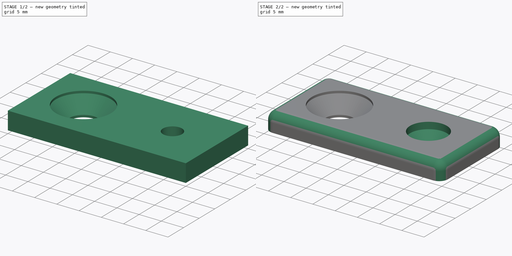
[diagram: build sequence overview — one tinted view per stage of 2, left to right]
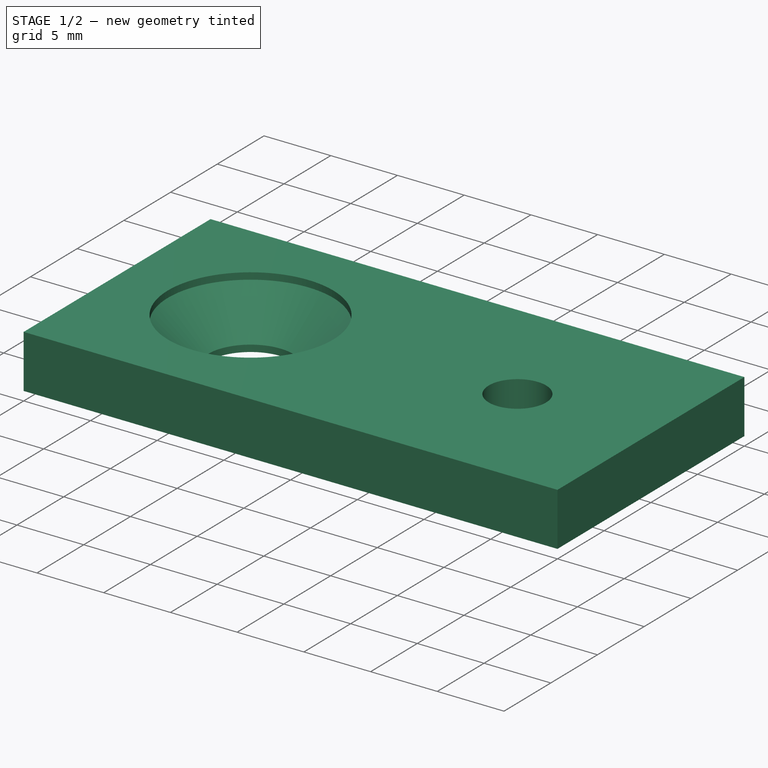
[diagram: stage 1 of 2 — iso view after this stage's code; geometry added in this stage tinted green]
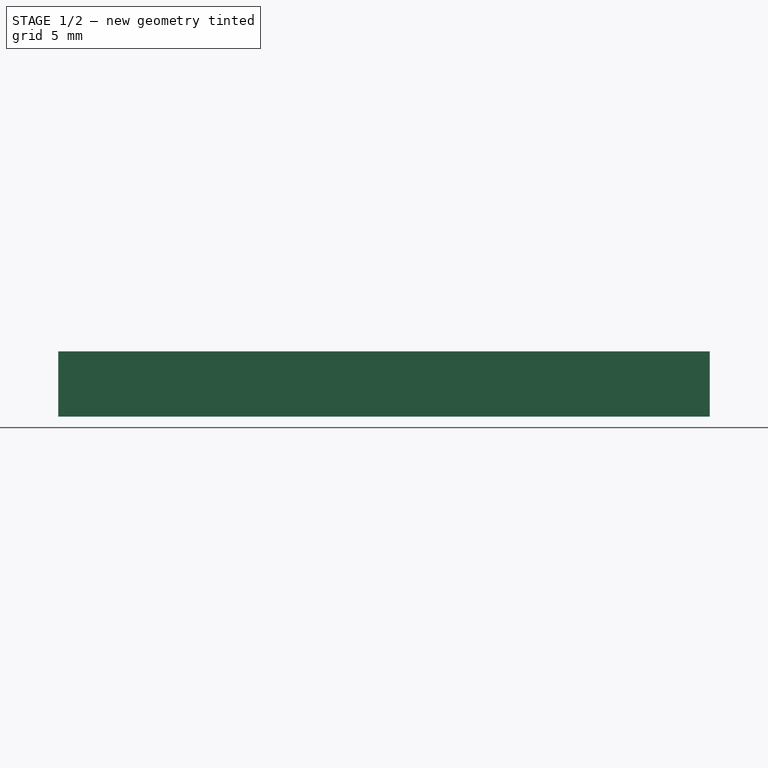
[diagram: stage 1 of 2 — front view after this stage's code; geometry added in this stage tinted green]
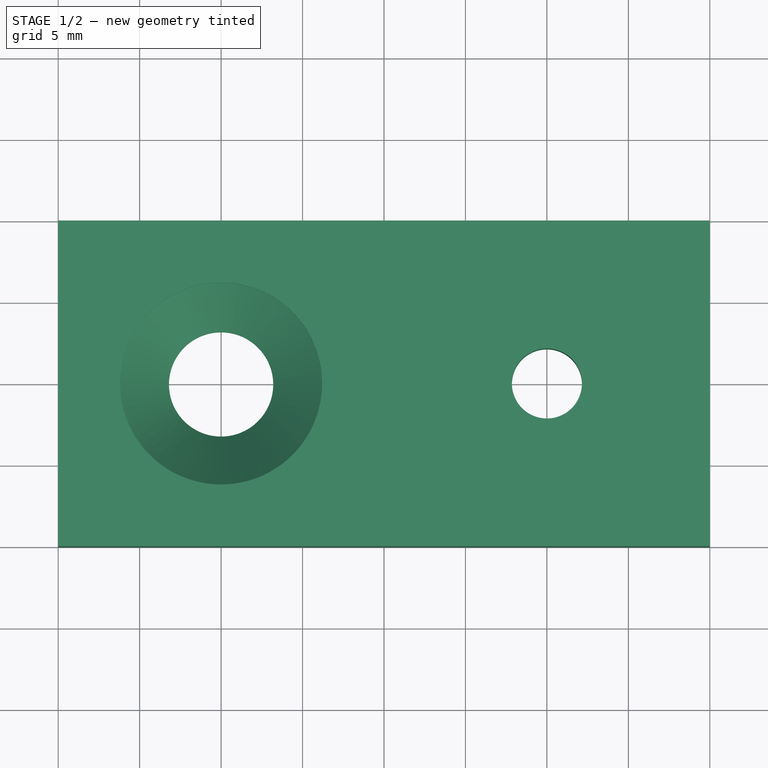
[diagram: stage 1 of 2 — top view after this stage's code; geometry added in this stage tinted green]
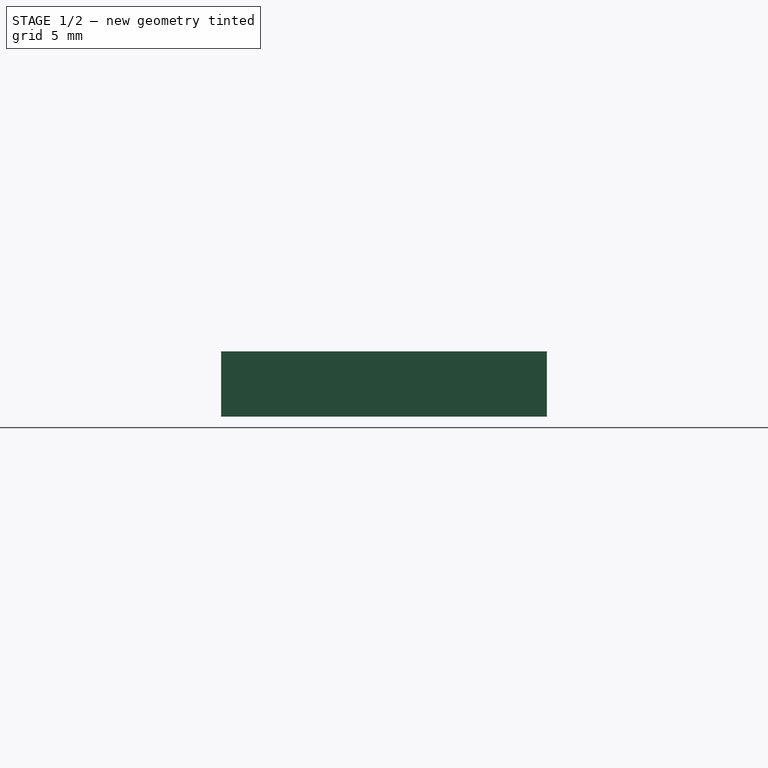
[diagram: stage 1 of 2 — right view after this stage's code; geometry added in this stage tinted green]
FCSTD DOCUMENT  (FreeCAD 0.18R13971 (Git))
Label: 07_503_z-foot
License: All rights reserved
LicenseURL: http://en.wikipedia.org/wiki/All_rights_reserved
objects: Sketcher::SketchObject×7, PartDesign::SubtractiveLoft×2, Spreadsheet::Sheet×1, PartDesign::Pad×1, PartDesign::Fillet×1, PartDesign::Body×1
note: 15 computed .brp shape members not serialized (recipe doc carries the construction recipe); baked Part::Feature solids carry a one-line shape summary decoded from their .brp

FEATURE [Spreadsheet::Sheet] Spreadsheet  label="sheet1"
  cells = A1=dx; B1(dx)=40; A2=dy; B2(dy)=20; A3=dz; B3(dz)=4; A4=M6Clearance; B4(M6Clearance)=6.4000000000000004; A5=M6CounterSinkDepth; B5(M6CounterSinkDepth)=3.5; A6=M4Clearance; B6(M4Clearance)=4.2999999999999998; A7=M4CounterSinkDepth; B7(M4CounterSinkDepth)=3.5; A8=M6HoleX; B8(M6HoleX)=10; A9=M6HoleY; B9(M6HoleY)=10; A10=M4HoleX; B10(M4HoleX)=30; A11=M4HoleY; B11(M4HoleY)=10
FEATURE [Sketcher::SketchObject] Sketch
  MapMode = 5
  Support = -> [XY_Plane]
  expr: Constraints[15] = sheet1.M6Clearance / 2
  expr: Constraints[16] = sheet1.M4Clearance / 2
  expr: Constraints[10] = sheet1.dx
  expr: Constraints[9] = sheet1.dy
  sketch-geometry (6):
    g0: LineSegment StartX=0 StartY=20 StartZ=0 EndX=40 EndY=20 EndZ=0
    g1: LineSegment StartX=40 StartY=20 StartZ=0 EndX=40 EndY=0 EndZ=0
    g2: LineSegment StartX=40 StartY=0 StartZ=0 EndX=0 EndY=0 EndZ=0
    g3: LineSegment StartX=0 StartY=0 StartZ=0 EndX=0 EndY=20 EndZ=0
    g4: Circle CenterX=10 CenterY=10 CenterZ=0 NormalX=0 NormalY=0 NormalZ=1 AngleXU=0 Radius=3.2
    g5: Circle CenterX=30 CenterY=10 CenterZ=0 NormalX=0 NormalY=0 NormalZ=1 AngleXU=0 Radius=2.15
  constraints (17):
    c: Coincident(g0,g1)
    c: Coincident(g1,g2)
    c: Coincident(g2,g3)
    c: Coincident(g3,g0)
    c: Horizontal(g0)
    c: Horizontal(g2)
    c: Vertical(g1)
    c: Vertical(g3)
    c: Coincident(g2,g-1)
    c: Distance(g3) = 20
    c: Distance(g2) = 40
    c: DistanceX(g-2,g4) = 10
    c: DistanceY(g-1,g4) = 10
    c: DistanceX(g-2,g5) = 30
    c: DistanceY(g-1,g5) = 10
    c: Radius(g4) = 3.2
    c: Radius(g5) = 2.15
FEATURE [PartDesign::Pad] Pad
  Length = 4
  Length2 = 100
  Profile = -> Sketch
  Type = 0
  expr: Length = sheet1.dz
FEATURE [Sketcher::SketchObject] Sketch001
  AttachmentOffset = pos=(0,0,0.5) rot=(0,0,1;0rad)
  MapMode = 5
  Placement = pos=(0,0,0.5) rot=(0,0,1;0rad)
  Support = -> [XY_Plane]
  expr: AttachmentOffset.Base.z = sheet1.dz - sheet1.M6CounterSinkDepth
  expr: Constraints[15] = sheet1.M6Clearance / 2
  expr: Constraints[16] = sheet1.M4Clearance / 2
  expr: Constraints[10] = sheet1.dx
  expr: Constraints[9] = sheet1.dy
  sketch-geometry (6):
    g0: LineSegment [constr] StartX=0 StartY=20 StartZ=0 EndX=40 EndY=20 EndZ=0
    g1: LineSegment [constr] StartX=40 StartY=20 StartZ=0 EndX=40 EndY=0 EndZ=0
    g2: LineSegment [constr] StartX=40 StartY=0 StartZ=0 EndX=0 EndY=0 EndZ=0
    g3: LineSegment [constr] StartX=0 StartY=0 StartZ=0 EndX=0 EndY=20 EndZ=0
    g4: Circle CenterX=10 CenterY=10 CenterZ=0 NormalX=0 NormalY=0 NormalZ=1 AngleXU=0 Radius=3.2
    g5: Circle [constr] CenterX=30 CenterY=10 CenterZ=0 NormalX=0 NormalY=0 NormalZ=1 AngleXU=0 Radius=2.15
  constraints (17):
    c: Coincident(g0,g1)
    c: Coincident(g1,g2)
    c: Coincident(g2,g3)
    c: Coincident(g3,g0)
    c: Horizontal(g0)
    c: Horizontal(g2)
    c: Vertical(g1)
    c: Vertical(g3)
    c: Coincident(g2,g-1)
    c: Distance(g3) = 20
    c: Distance(g2) = 40
    c: DistanceX(g-2,g4) = 10
    c: DistanceY(g-1,g4) = 10
    c: DistanceX(g-2,g5) = 30
    c: DistanceY(g-1,g5) = 10
    c: Radius(g4) = 3.2
    c: Radius(g5) = 2.15
FEATURE [Sketcher::SketchObject] Sketch002
  AttachmentOffset = pos=(0,0,3.5) rot=(0,0,1;0rad)
  MapMode = 5
  Placement = pos=(0,0,3.5) rot=(0,0,1;0rad)
  Support = -> [XY_Plane]
  expr: AttachmentOffset.Base.z = sheet1.dz - sheet1.M6CounterSinkDepth + 3
  expr: Constraints[15] = sheet1.M6Clearance / 2 + 3
  expr: Constraints[16] = sheet1.M4Clearance / 2
  expr: Constraints[10] = sheet1.dx
  expr: Constraints[9] = sheet1.dy
  sketch-geometry (6):
    g0: LineSegment [constr] StartX=0 StartY=20 StartZ=0 EndX=40 EndY=20 EndZ=0
    g1: LineSegment [constr] StartX=40 StartY=20 StartZ=0 EndX=40 EndY=0 EndZ=0
    g2: LineSegment [constr] StartX=40 StartY=0 StartZ=0 EndX=0 EndY=0 EndZ=0
    g3: LineSegment [constr] StartX=0 StartY=0 StartZ=0 EndX=0 EndY=20 EndZ=0
    g4: Circle CenterX=10 CenterY=10 CenterZ=0 NormalX=0 NormalY=0 NormalZ=1 AngleXU=0 Radius=6.2
    g5: Circle [constr] CenterX=30 CenterY=10 CenterZ=0 NormalX=0 NormalY=0 NormalZ=1 AngleXU=0 Radius=2.15
  constraints (17):
    c: Coincident(g0,g1)
    c: Coincident(g1,g2)
    c: Coincident(g2,g3)
    c: Coincident(g3,g0)
    c: Horizontal(g0)
    c: Horizontal(g2)
    c: Vertical(g1)
    c: Vertical(g3)
    c: Coincident(g2,g-1)
    c: Distance(g3) = 20
    c: Distance(g2) = 40
    c: DistanceX(g-2,g4) = 10
    c: DistanceY(g-1,g4) = 10
    c: DistanceX(g-2,g5) = 30
    c: DistanceY(g-1,g5) = 10
    c: Radius(g4) = 6.2
    c: Radius(g5) = 2.15
FEATURE [Sketcher::SketchObject] Sketch003
  AttachmentOffset = pos=(0,0,4) rot=(0,0,1;0rad)
  MapMode = 5
  Placement = pos=(0,0,4) rot=(0,0,1;0rad)
  Support = -> [XY_Plane]
  expr: AttachmentOffset.Base.z = sheet1.dz
  expr: Constraints[15] = sheet1.M6Clearance / 2 + 3
  expr: Constraints[16] = sheet1.M4Clearance / 2
  expr: Constraints[10] = sheet1.dx
  expr: Constraints[9] = sheet1.dy
  sketch-geometry (6):
    g0: LineSegment [constr] StartX=0 StartY=20 StartZ=0 EndX=40 EndY=20 EndZ=0
    g1: LineSegment [constr] StartX=40 StartY=20 StartZ=0 EndX=40 EndY=0 EndZ=0
    g2: LineSegment [constr] StartX=40 StartY=0 StartZ=0 EndX=0 EndY=0 EndZ=0
    g3: LineSegment [constr] StartX=0 StartY=0 StartZ=0 EndX=0 EndY=20 EndZ=0
    g4: Circle CenterX=10 CenterY=10 CenterZ=0 NormalX=0 NormalY=0 NormalZ=1 AngleXU=0 Radius=6.2
    g5: Circle [constr] CenterX=30 CenterY=10 CenterZ=0 NormalX=0 NormalY=0 NormalZ=1 AngleXU=0 Radius=2.15
  constraints (17):
    c: Coincident(g0,g1)
    c: Coincident(g1,g2)
    c: Coincident(g2,g3)
    c: Coincident(g3,g0)
    c: Horizontal(g0)
    c: Horizontal(g2)
    c: Vertical(g1)
    c: Vertical(g3)
    c: Coincident(g2,g-1)
    c: Distance(g3) = 20
    c: Distance(g2) = 40
    c: DistanceX(g-2,g4) = 10
    c: DistanceY(g-1,g4) = 10
    c: DistanceX(g-2,g5) = 30
    c: DistanceY(g-1,g5) = 10
    c: Radius(g4) = 6.2
    c: Radius(g5) = 2.15
FEATURE [PartDesign::SubtractiveLoft] SubtractiveLoft
  BaseFeature = -> Pad
  Closed = true
  Profile = -> Sketch001
  Ruled = true
  Sections = -> [Sketch002,Sketch003]
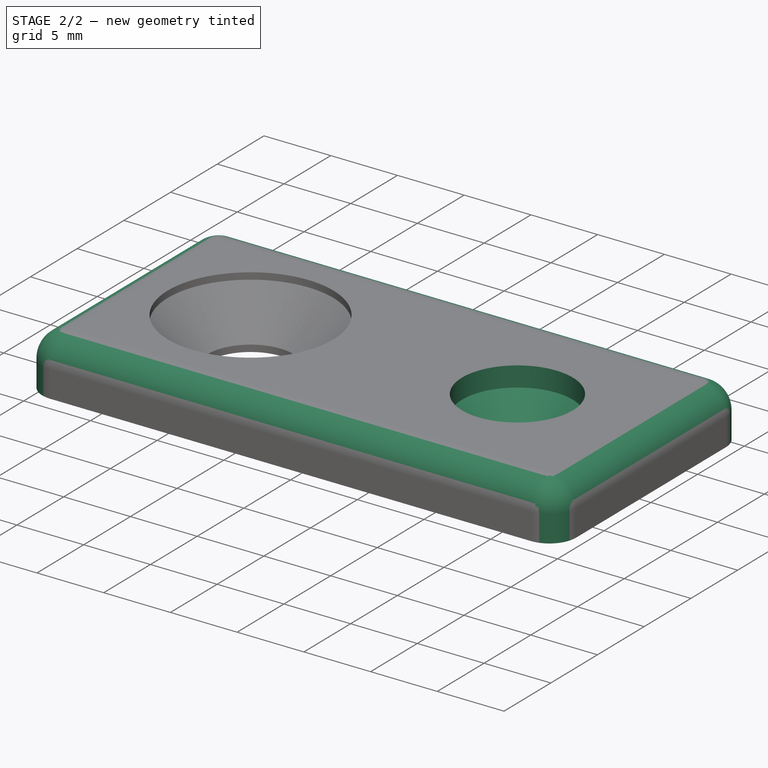
[diagram: stage 2 of 2 — iso view after this stage's code; geometry added in this stage tinted green]
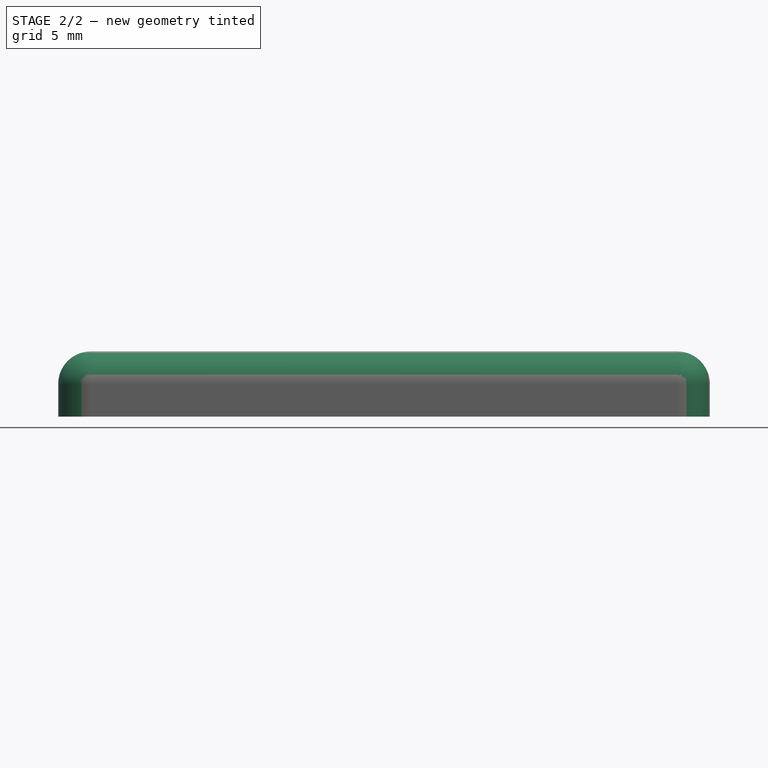
[diagram: stage 2 of 2 — front view after this stage's code; geometry added in this stage tinted green]
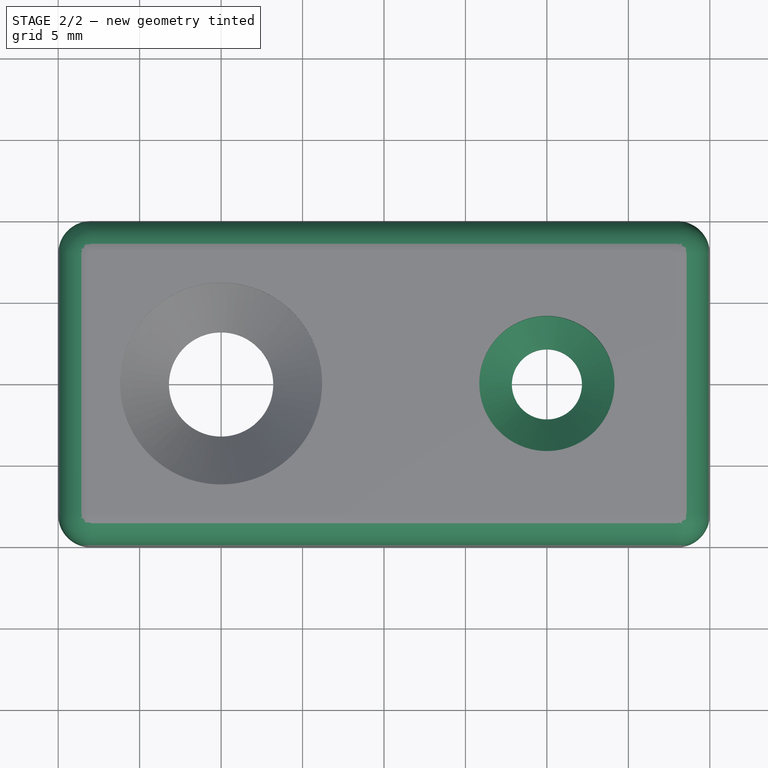
[diagram: stage 2 of 2 — top view after this stage's code; geometry added in this stage tinted green]
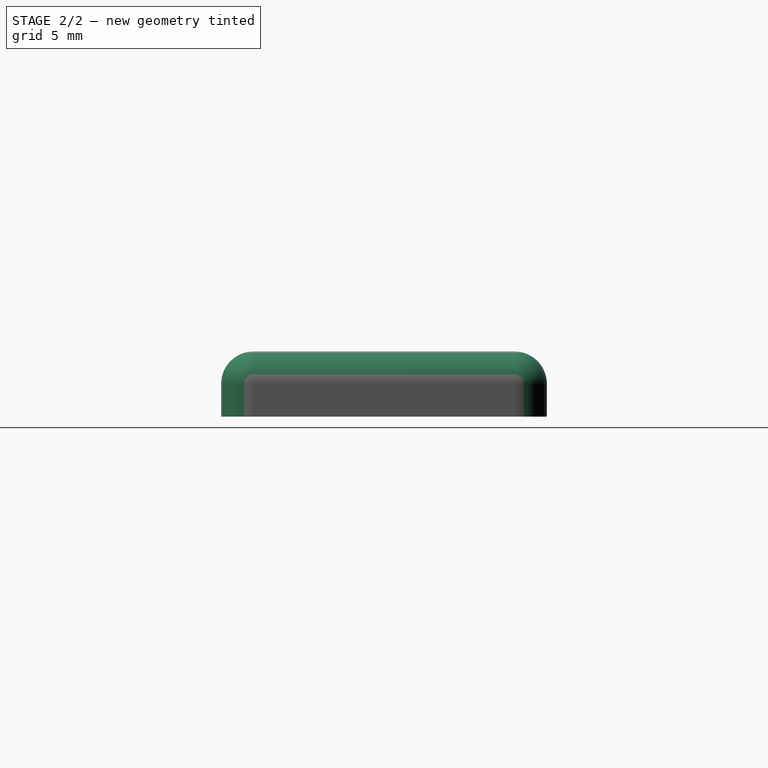
[diagram: stage 2 of 2 — right view after this stage's code; geometry added in this stage tinted green]
FEATURE [Sketcher::SketchObject] Sketch004
  AttachmentOffset = pos=(0,0,0.5) rot=(0,0,1;0rad)
  MapMode = 5
  Placement = pos=(0,0,0.5) rot=(0,0,1;0rad)
  Support = -> [XY_Plane]
  expr: AttachmentOffset.Base.z = sheet1.dz - sheet1.M4CounterSinkDepth
  expr: Constraints[15] = sheet1.M6Clearance / 2
  expr: Constraints[16] = sheet1.M4Clearance / 2
  expr: Constraints[10] = sheet1.dx
  expr: Constraints[9] = sheet1.dy
  sketch-geometry (6):
    g0: LineSegment [constr] StartX=0 StartY=20 StartZ=0 EndX=40 EndY=20 EndZ=0
    g1: LineSegment [constr] StartX=40 StartY=20 StartZ=0 EndX=40 EndY=0 EndZ=0
    g2: LineSegment [constr] StartX=40 StartY=0 StartZ=0 EndX=0 EndY=0 EndZ=0
    g3: LineSegment [constr] StartX=0 StartY=0 StartZ=0 EndX=0 EndY=20 EndZ=0
    g4: Circle [constr] CenterX=10 CenterY=10 CenterZ=0 NormalX=0 NormalY=0 NormalZ=1 AngleXU=0 Radius=3.2
    g5: Circle CenterX=30 CenterY=10 CenterZ=0 NormalX=0 NormalY=0 NormalZ=1 AngleXU=0 Radius=2.15
  constraints (17):
    c: Coincident(g0,g1)
    c: Coincident(g1,g2)
    c: Coincident(g2,g3)
    c: Coincident(g3,g0)
    c: Horizontal(g0)
    c: Horizontal(g2)
    c: Vertical(g1)
    c: Vertical(g3)
    c: Coincident(g2,g-1)
    c: Distance(g3) = 20
    c: Distance(g2) = 40
    c: DistanceX(g-2,g4) = 10
    c: DistanceY(g-1,g4) = 10
    c: DistanceX(g-2,g5) = 30
    c: DistanceY(g-1,g5) = 10
    c: Radius(g4) = 3.2
    c: Radius(g5) = 2.15
FEATURE [Sketcher::SketchObject] Sketch005
  AttachmentOffset = pos=(0,0,2.5) rot=(0,0,1;0rad)
  MapMode = 5
  Placement = pos=(0,0,2.5) rot=(0,0,1;0rad)
  Support = -> [XY_Plane]
  expr: AttachmentOffset.Base.z = sheet1.dz - sheet1.M4CounterSinkDepth + 2
  expr: Constraints[15] = sheet1.M6Clearance / 2 + 3
  expr: Constraints[16] = sheet1.M4Clearance / 2 + 2
  expr: Constraints[10] = sheet1.dx
  expr: Constraints[9] = sheet1.dy
  sketch-geometry (6):
    g0: LineSegment [constr] StartX=0 StartY=20 StartZ=0 EndX=40 EndY=20 EndZ=0
    g1: LineSegment [constr] StartX=40 StartY=20 StartZ=0 EndX=40 EndY=0 EndZ=0
    g2: LineSegment [constr] StartX=40 StartY=0 StartZ=0 EndX=0 EndY=0 EndZ=0
    g3: LineSegment [constr] StartX=0 StartY=0 StartZ=0 EndX=0 EndY=20 EndZ=0
    g4: Circle [constr] CenterX=10 CenterY=10 CenterZ=0 NormalX=0 NormalY=0 NormalZ=1 AngleXU=0 Radius=6.2
    g5: Circle CenterX=30 CenterY=10 CenterZ=0 NormalX=0 NormalY=0 NormalZ=1 AngleXU=0 Radius=4.15
  constraints (17):
    c: Coincident(g0,g1)
    c: Coincident(g1,g2)
    c: Coincident(g2,g3)
    c: Coincident(g3,g0)
    c: Horizontal(g0)
    c: Horizontal(g2)
    c: Vertical(g1)
    c: Vertical(g3)
    c: Coincident(g2,g-1)
    c: Distance(g3) = 20
    c: Distance(g2) = 40
    c: DistanceX(g-2,g4) = 10
    c: DistanceY(g-1,g4) = 10
    c: DistanceX(g-2,g5) = 30
    c: DistanceY(g-1,g5) = 10
    c: Radius(g4) = 6.2
    c: Radius(g5) = 4.15
FEATURE [Sketcher::SketchObject] Sketch006
  AttachmentOffset = pos=(0,0,4) rot=(0,0,1;0rad)
  MapMode = 5
  Placement = pos=(0,0,4) rot=(0,0,1;0rad)
  Support = -> [XY_Plane]
  expr: AttachmentOffset.Base.z = sheet1.dz
  expr: Constraints[15] = sheet1.M6Clearance / 2 + 3
  expr: Constraints[16] = sheet1.M4Clearance / 2 + 2
  expr: Constraints[10] = sheet1.dx
  expr: Constraints[9] = sheet1.dy
  sketch-geometry (6):
    g0: LineSegment [constr] StartX=0 StartY=20 StartZ=0 EndX=40 EndY=20 EndZ=0
    g1: LineSegment [constr] StartX=40 StartY=20 StartZ=0 EndX=40 EndY=0 EndZ=0
    g2: LineSegment [constr] StartX=40 StartY=0 StartZ=0 EndX=0 EndY=0 EndZ=0
    g3: LineSegment [constr] StartX=0 StartY=0 StartZ=0 EndX=0 EndY=20 EndZ=0
    g4: Circle [constr] CenterX=10 CenterY=10 CenterZ=0 NormalX=0 NormalY=0 NormalZ=1 AngleXU=0 Radius=6.2
    g5: Circle CenterX=30 CenterY=10 CenterZ=0 NormalX=0 NormalY=0 NormalZ=1 AngleXU=0 Radius=4.15
  constraints (17):
    c: Coincident(g0,g1)
    c: Coincident(g1,g2)
    c: Coincident(g2,g3)
    c: Coincident(g3,g0)
    c: Horizontal(g0)
    c: Horizontal(g2)
    c: Vertical(g1)
    c: Vertical(g3)
    c: Coincident(g2,g-1)
    c: Distance(g3) = 20
    c: Distance(g2) = 40
    c: DistanceX(g-2,g4) = 10
    c: DistanceY(g-1,g4) = 10
    c: DistanceX(g-2,g5) = 30
    c: DistanceY(g-1,g5) = 10
    c: Radius(g4) = 6.2
    c: Radius(g5) = 4.15
FEATURE [PartDesign::SubtractiveLoft] SubtractiveLoft001
  BaseFeature = -> SubtractiveLoft
  Closed = true
  Profile = -> Sketch004
  Ruled = true
  Sections = -> [Sketch005,Sketch006]
FEATURE [PartDesign::Fillet] Fillet
  Base = -> SubtractiveLoft001 [Edge7,Edge14,Edge4,Edge10,Edge8,Edge2,Edge1,Edge5]
  BaseFeature = -> SubtractiveLoft001
  Radius = 2
FEATURE [PartDesign::Body] Body
  Group = -> [Sketch,Pad,Sketch001,Sketch002,Sketch003,SubtractiveLoft,Sketch004,Sketch005,Sketch006,SubtractiveLoft001,Fillet]
  Origin = -> Origin
  Tip = -> Fillet
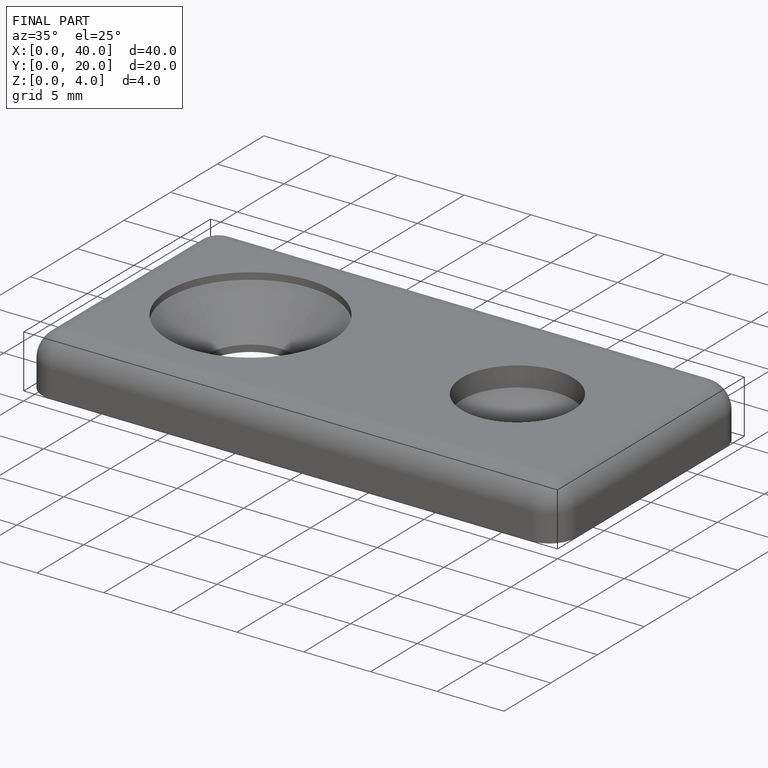
[diagram: finished part — iso view with bounding-box wireframe]
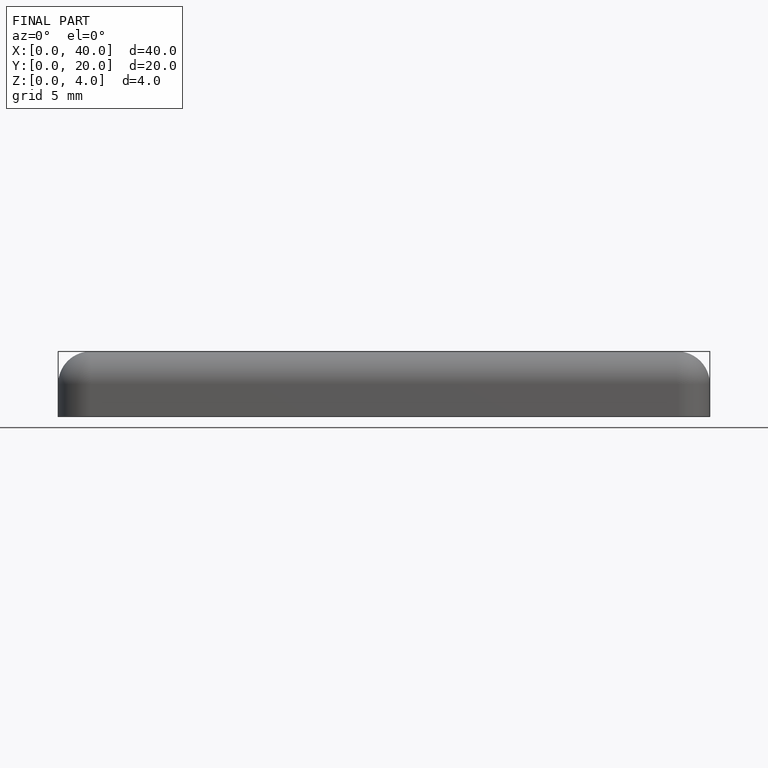
[diagram: finished part — front view with bounding-box wireframe]
